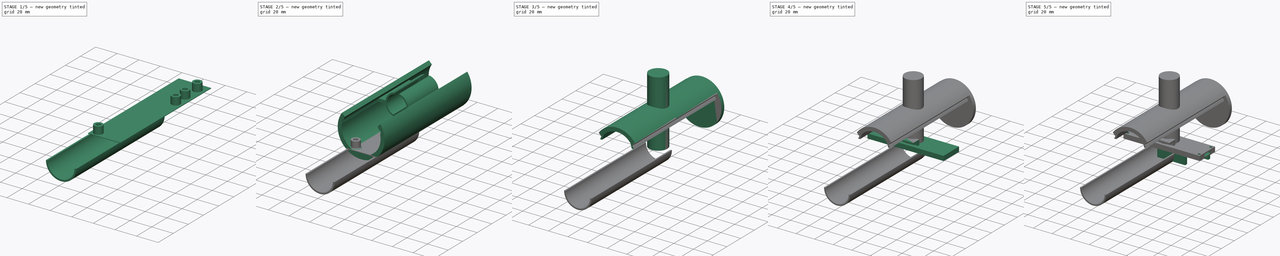
[diagram: build sequence overview — one tinted view per stage of 5, left to right]
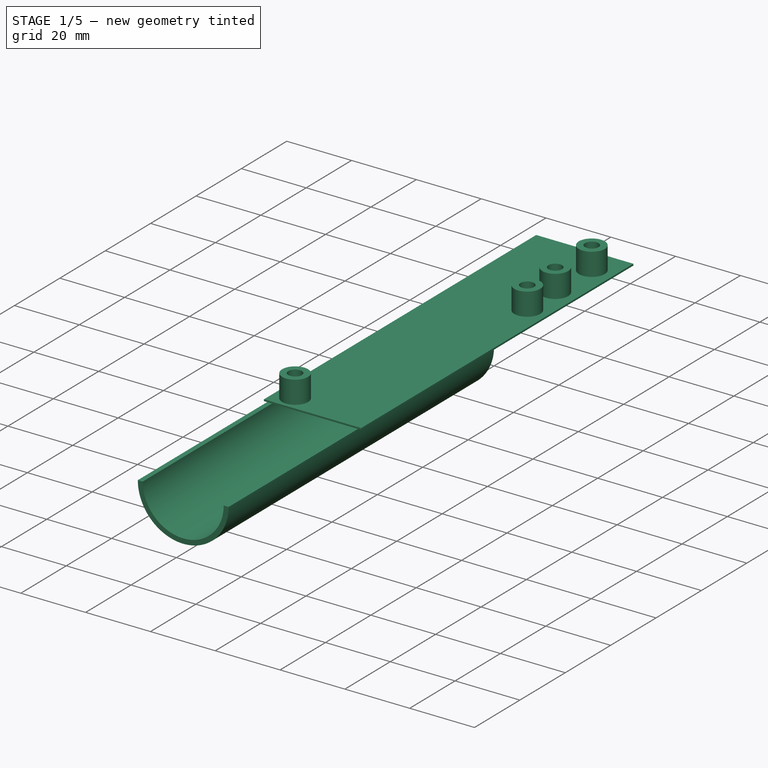
[diagram: stage 1 of 5 — iso view after this stage's code; geometry added in this stage tinted green]
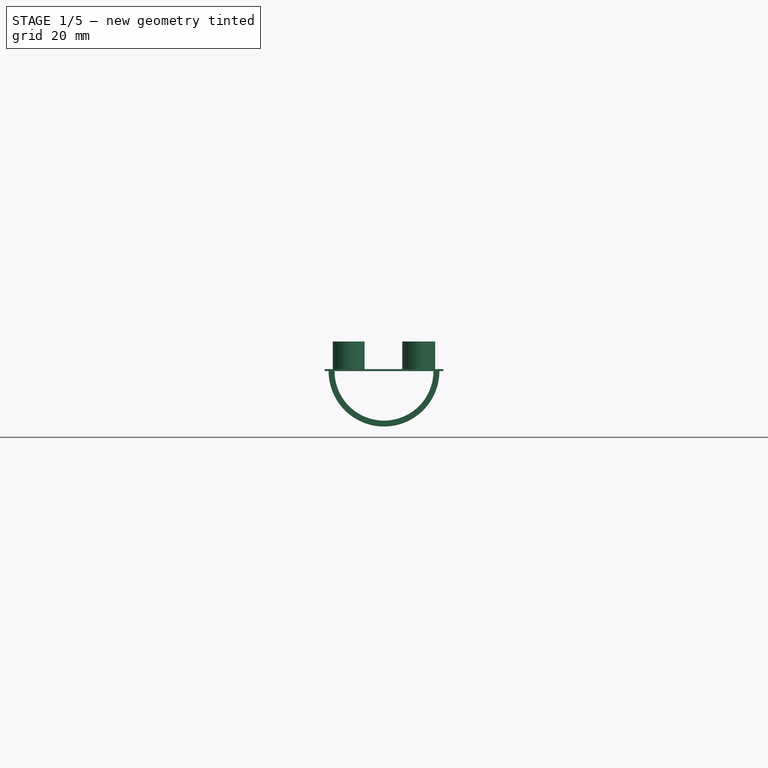
[diagram: stage 1 of 5 — front view after this stage's code; geometry added in this stage tinted green]
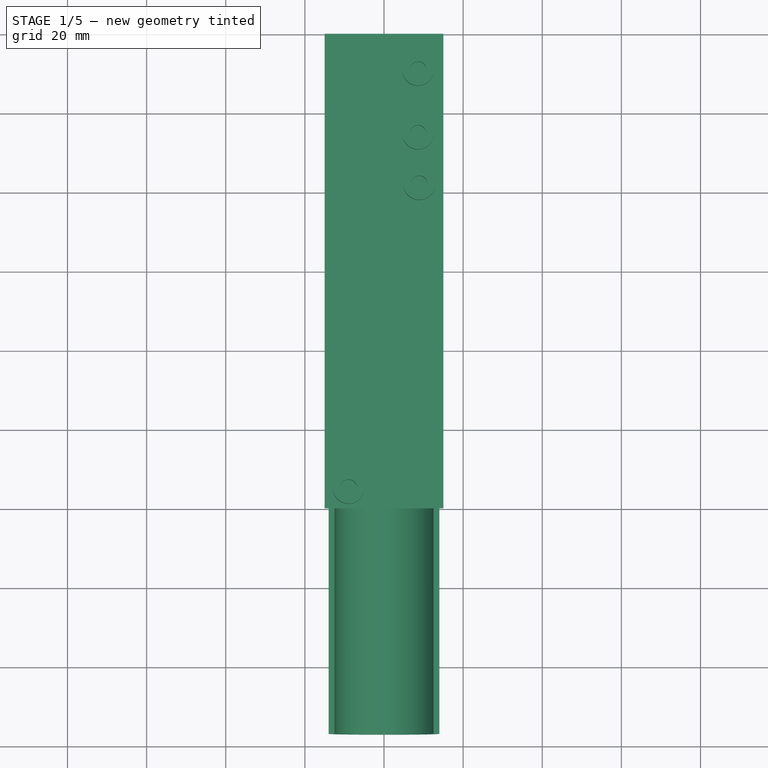
[diagram: stage 1 of 5 — top view after this stage's code; geometry added in this stage tinted green]
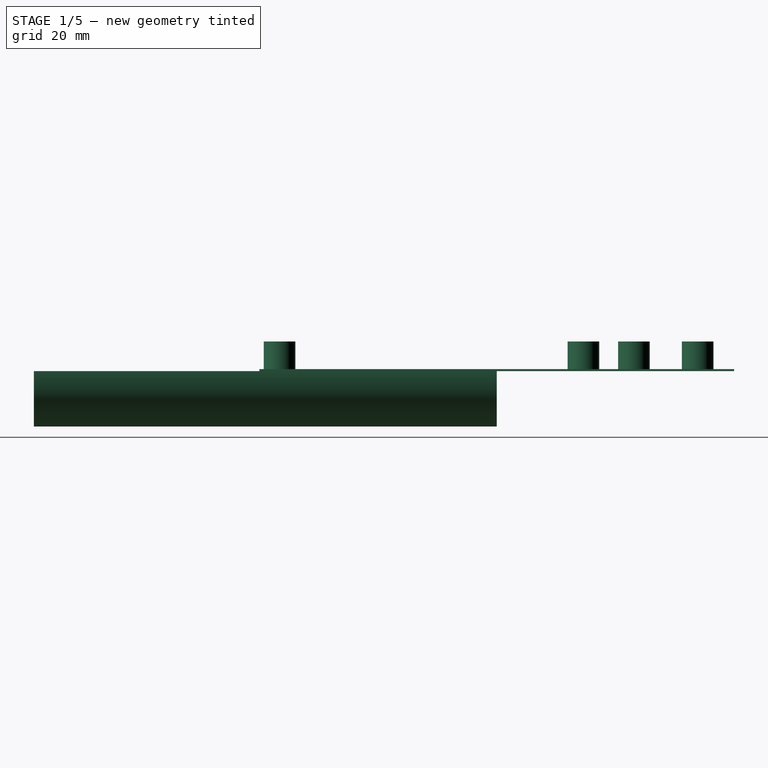
[diagram: stage 1 of 5 — right view after this stage's code; geometry added in this stage tinted green]
FCSTD DOCUMENT  (FreeCAD 0.20R29177 (Git))
Label: IOT_cellular_case
License: All rights reserved
LicenseURL: http://en.wikipedia.org/wiki/All_rights_reserved
objects: Sketcher::SketchObject×17, PartDesign::Pad×15, PartDesign::Body×6, PartDesign::Pocket×4, PartDesign::Chamfer×1, PartDesign::Plane×1
note: 64 computed .brp shape members not serialized (recipe doc carries the construction recipe); baked Part::Feature solids carry a one-line shape summary decoded from their .brp

FEATURE [PartDesign::Body] Body001  label="MPU"
  Group = -> [Sketch005,Pad003,Sketch006,Pocket002,Sketch007,Pad004]
  Origin = -> Origin001
  Placement = pos=(0.3,-9.55,-3.3) rot=(0,0,1;0rad)
  Tip = -> Pad004
FEATURE [Sketcher::SketchObject] Sketch008
  FullyConstrained = true
  MapMode = 5
  Support = -> [XY_Plane002]
  sketch-geometry (5):
    g0: LineSegment StartX=-15 StartY=60 StartZ=0 EndX=-15 EndY=-60 EndZ=0
    g1: LineSegment StartX=-15 StartY=-60 StartZ=0 EndX=15 EndY=-60 EndZ=0
    g2: LineSegment StartX=15 StartY=-60 StartZ=0 EndX=15 EndY=60 EndZ=0
    g3: LineSegment StartX=15 StartY=60 StartZ=0 EndX=-15 EndY=60 EndZ=0
    g4: GeomPoint X=0 Y=1e-16 Z=0
  constraints (12):
    c: Coincident(g0,g1)
    c: Coincident(g1,g2)
    c: Coincident(g2,g3)
    c: Coincident(g3,g0)
    c: Horizontal(g1)
    c: Horizontal(g3)
    c: Vertical(g0)
    c: Vertical(g2)
    c: Symmetric(g1,g0,g4)
    c: Coincident(g4,g-1)
    c: Distance(g2) = 120
    c: Distance(g1) = 30
FEATURE [PartDesign::Pad] Pad005
  Direction = (0,0,1)
  Length = 0.5
  Length2 = 10
  Profile = -> Sketch008
  ReferenceAxis = -> Sketch008 [N_Axis]
  Type = 0
FEATURE [Sketcher::SketchObject] Sketch009
  FullyConstrained = false
  MapMode = 5
  Placement = pos=(0,0,0.5) rot=(0,0,1;0rad)
  Support = -> [Pad005]
  sketch-geometry (4):
    g0: Circle CenterX=-8.94397 CenterY=-54.9007 CenterZ=0 NormalX=0 NormalY=0 NormalZ=1 AngleXU=0 Radius=2.1
    g1: Circle CenterX=8.91464 CenterY=21.9103 CenterZ=0 NormalX=0 NormalY=0 NormalZ=1 AngleXU=0 Radius=2.1
    g2: Circle CenterX=-8.94397 CenterY=-54.9007 CenterZ=0 NormalX=0 NormalY=0 NormalZ=1 AngleXU=0 Radius=4
    g3: Circle CenterX=8.91464 CenterY=21.9103 CenterZ=0 NormalX=0 NormalY=0 NormalZ=1 AngleXU=0 Radius=4
  constraints (6):
    c: Diameter(g1) = 4.2
    c: Diameter(g0) = 4.2
    c: Coincident(g2,g0)
    c: Coincident(g3,g1)
    c: Diameter(g3) = 8
    c: Diameter(g2) = 8
FEATURE [PartDesign::Pad] Pad006
  BaseFeature = -> Pad005
  Direction = (0,0,1)
  Length = 7
  Length2 = 10
  Profile = -> Sketch009
  ReferenceAxis = -> Sketch009 [N_Axis]
  Type = 0
FEATURE [Sketcher::SketchObject] Sketch010
  FullyConstrained = false
  MapMode = 5
  Placement = pos=(0,0,0.5) rot=(0,0,1;0rad)
  Support = -> [Pad006]
  sketch-geometry (4):
    g0: Circle CenterX=8.60808 CenterY=50.7918 CenterZ=0 NormalX=0 NormalY=0 NormalZ=1 AngleXU=0 Radius=2.1
    g1: Circle CenterX=8.60808 CenterY=34.6824 CenterZ=0 NormalX=0 NormalY=0 NormalZ=1 AngleXU=0 Radius=2.1
    g2: Circle CenterX=8.60808 CenterY=50.7918 CenterZ=0 NormalX=0 NormalY=0 NormalZ=1 AngleXU=0 Radius=4
    g3: Circle CenterX=8.60808 CenterY=34.6824 CenterZ=0 NormalX=0 NormalY=0 NormalZ=1 AngleXU=0 Radius=4
  constraints (6):
    c: Coincident(g2,g0)
    c: Coincident(g3,g1)
    c: Diameter(g1) = 4.2
    c: Diameter(g0) = 4.2
    c: Diameter(g3) = 8
    c: Diameter(g2) = 8
FEATURE [PartDesign::Pad] Pad007
  BaseFeature = -> Pad006
  Direction = (0,0,1)
  Length = 7
  Length2 = 10
  Profile = -> Sketch010
  ReferenceAxis = -> Sketch010 [N_Axis]
  Type = 0
FEATURE [PartDesign::Body] Body003  label="Top"
  Group = -> [Sketch015,Pad012,Pad013,Sketch016,Pad014]
  Origin = -> Origin003
  Tip = -> Pad014
FEATURE [Sketcher::SketchObject] Sketch017
  FullyConstrained = true
  MapMode = 5
  Placement = pos=(0,0,0) rot=(1,0,0;1.5708rad)
  Support = -> [XZ_Plane006]
  sketch-geometry (4):
    g0: ArcOfCircle CenterX=0 CenterY=0 CenterZ=0 NormalX=0 NormalY=0 NormalZ=1 AngleXU=0 Radius=12.5 StartAngle=3.14159 EndAngle=6.28319
    g1: ArcOfCircle CenterX=0 CenterY=1.3e-15 CenterZ=0 NormalX=0 NormalY=0 NormalZ=1 AngleXU=0 Radius=14 StartAngle=3.14159 EndAngle=6.28319
    g2: LineSegment StartX=-12.5 StartY=3e-15 StartZ=0 EndX=-14 EndY=3e-15 EndZ=0
    g3: LineSegment StartX=14 StartY=-3.1e-15 StartZ=0 EndX=12.5 EndY=-3.1e-15 EndZ=0
  constraints (13):
    c: Angle(g0) = 3.14159
    c: Angle(g1) = 3.14159
    c: Coincident(g2,g0)
    c: Coincident(g2,g1)
    c: Horizontal(g2)
    c: Coincident(g3,g1)
    c: Coincident(g3,g0)
    c: Horizontal(g3)
    c: Diameter(g0) = 25
    c: Diameter(g1) = 28
    c: DistanceX(g0,g1) = 0
    c: Coincident(g0,g-1)
    c: DistanceY(g0,g0) = 0
FEATURE [PartDesign::Pad] Pad015
  Direction = (0,-1,2e-16)
  Length = 117
  Length2 = 10
  Placement = pos=(0,0,0) rot=(1,0,0;1.5708rad)
  Profile = -> Sketch017
  ReferenceAxis = -> Sketch017 [N_Axis]
  Type = 0
FEATURE [PartDesign::Body] Body006
  Group = -> [Sketch017,Pad015]
  Origin = -> Origin006
  Tip = -> Pad015
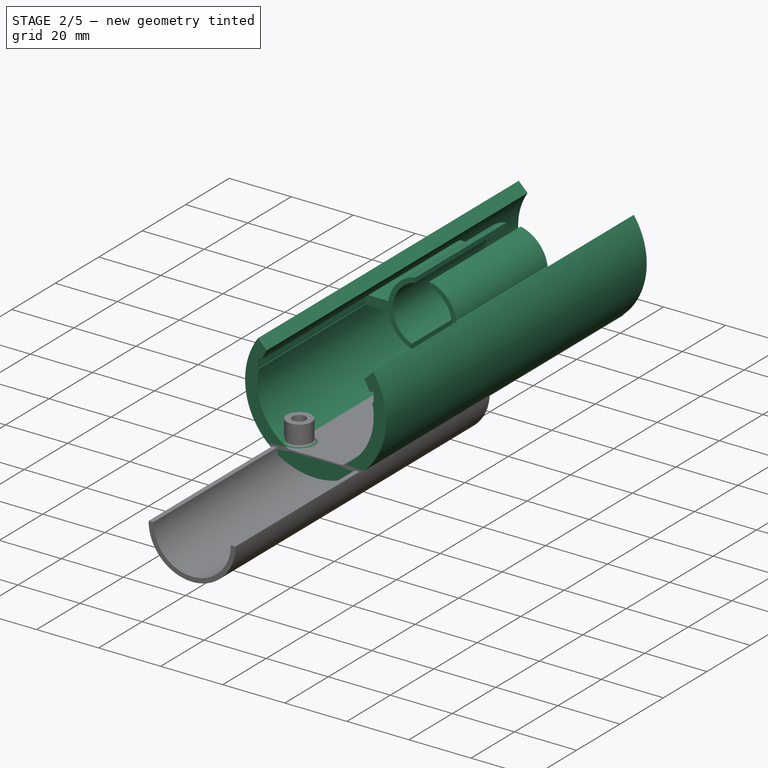
[diagram: stage 2 of 5 — iso view after this stage's code; geometry added in this stage tinted green]
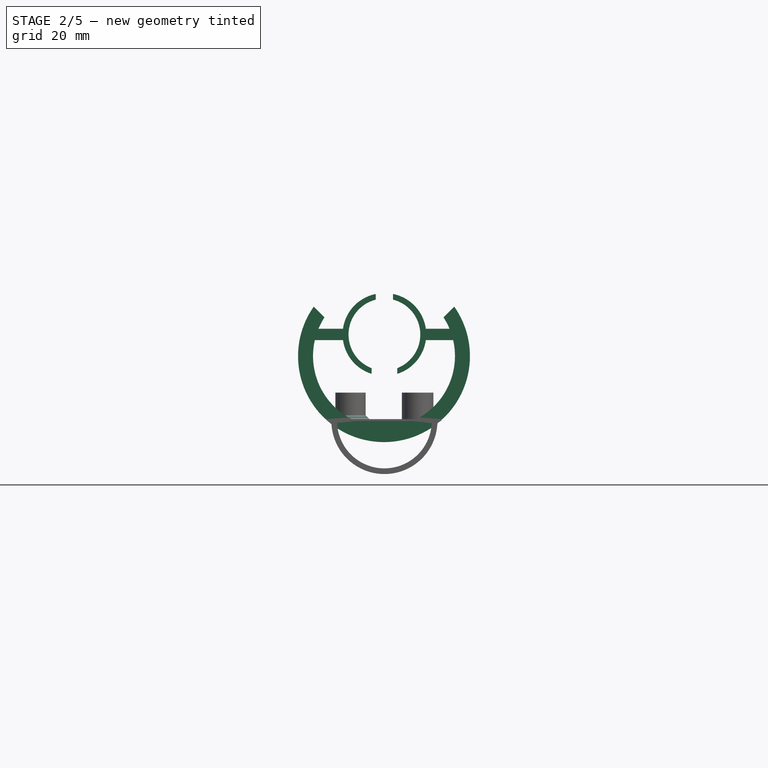
[diagram: stage 2 of 5 — front view after this stage's code; geometry added in this stage tinted green]
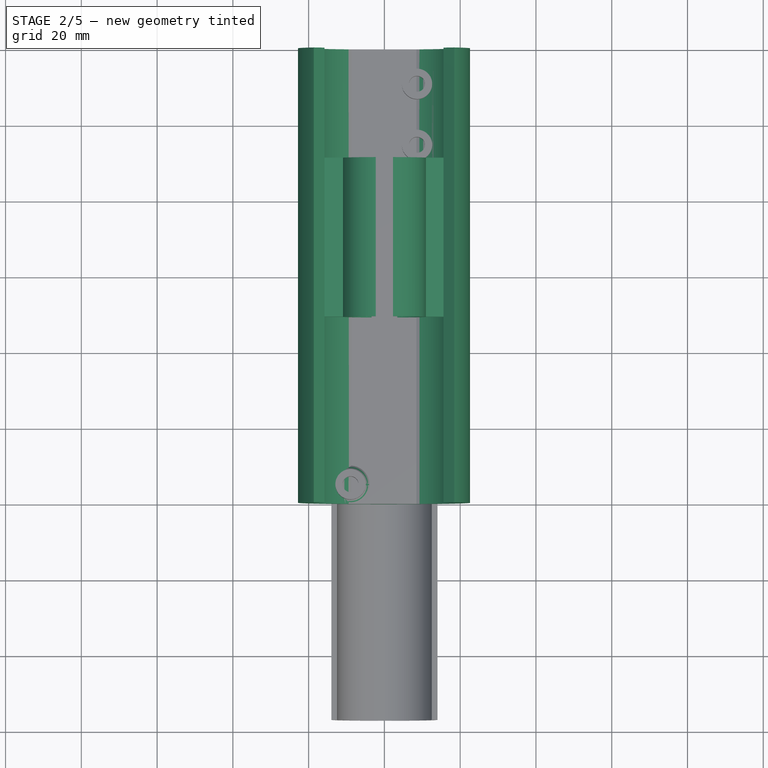
[diagram: stage 2 of 5 — top view after this stage's code; geometry added in this stage tinted green]
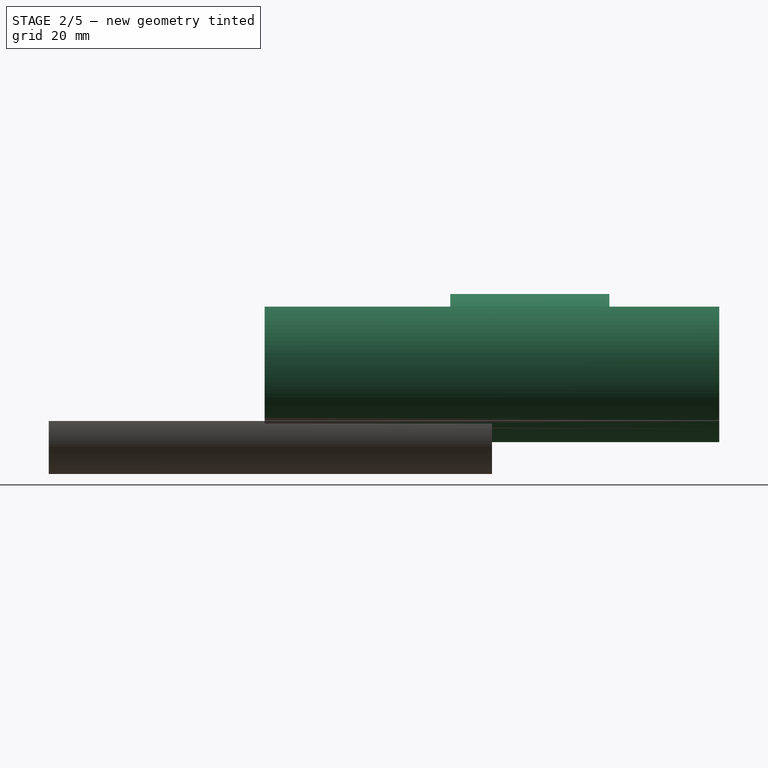
[diagram: stage 2 of 5 — right view after this stage's code; geometry added in this stage tinted green]
FEATURE [PartDesign::Body] Body004  label="Battery"
  Group = -> [Sketch013,Pad009]
  Origin = -> Origin004
  Placement = pos=(0,-133.8,15.2) rot=(-1,0,0;1.5708rad)
  Tip = -> Pad009
FEATURE [Sketcher::SketchObject] Sketch011
  ExternalGeometry = -> [Pad007]
  FullyConstrained = false
  MapMode = 5
  Placement = pos=(0,60,0) rot=(0,0.707107,0.707107;3.14159rad)
  Support = -> [Pad007]
  sketch-geometry (6):
    g0: ArcOfCircle CenterX=0.109272 CenterY=17.1188 CenterZ=0 NormalX=0 NormalY=0 NormalZ=1 AngleXU=0 Radius=22.6889 StartAngle=2.52671 EndAngle=6.89807
    g1: LineSegment StartX=-18.424 StartY=30.2072 StartZ=0 EndX=-15.5955 EndY=27.3788 EndZ=0
    g2: LineSegment StartX=18.6425 StartY=30.2072 StartZ=0 EndX=15.8141 EndY=27.3788 EndZ=0
    g3: ArcOfCircle CenterX=0.109272 CenterY=17.1643 CenterZ=0 NormalX=0 NormalY=0 NormalZ=1 AngleXU=0 Radius=18.7344 StartAngle=2.56493 EndAngle=4.30006
    g4: ArcOfCircle CenterX=0.109272 CenterY=17.1643 CenterZ=0 NormalX=0 NormalY=0 NormalZ=1 AngleXU=0 Radius=18.7344 StartAngle=5.12472 EndAngle=6.85985
    g5: LineSegment StartX=-7.39841 StartY=1.42e-14 StartZ=0 EndX=7.61695 EndY=1.07e-14 EndZ=0
  constraints (15):
    c: PointOnObject(g-3,g0)
    c: Coincident(g1,g0)
    c: Coincident(g2,g0)
    c: Coincident(g3,g1)
    c: Coincident(g4,g2)
    c: Distance(g1) = 4
    c: Distance(g2) = 4
    c: Angle(g-1,g2) = 0.785398
    c: Angle(g1,g-1) = 0.785398
    c: Equal(g3,g4)
    c: PointOnObject(g3,g-3)
    c: PointOnObject(g4,g-3)
    c: Coincident(g3,g4)
    c: Coincident(g5,g3)
    c: Coincident(g5,g4)
FEATURE [PartDesign::Pad] Pad010
  BaseFeature = -> Pad007
  Direction = (0,1,-2e-16)
  Length = 10
  Length2 = 10
  Profile = -> Sketch011
  ReferenceAxis = -> Sketch011 [N_Axis]
  Reversed = true
  Type = 3
  UpToFace = -> Pad007 [Face3]
FEATURE [Sketcher::SketchObject] Sketch014
  ExternalGeometry = -> [Pad010]
  FullyConstrained = false
  MapMode = 5
  Placement = pos=(0,-60,0) rot=(1,0,0;1.5708rad)
  Support = -> [Pad010]
  sketch-geometry (16):
    g0: ArcOfCircle CenterX=0.0282242 CenterY=22.8191 CenterZ=0 NormalX=0 NormalY=0 NormalZ=1 AngleXU=0 Radius=9.5 StartAngle=1.81537 EndAngle=4.3461
    g1: LineSegment StartX=-3.37422 StartY=13.9493 StartZ=0 EndX=-3.37422 EndY=12.4493 EndZ=0
    g2: LineSegment StartX=-2.27216 StartY=32.0364 StartZ=0 EndX=-2.27216 EndY=33.5364 EndZ=0
    g3: ArcOfCircle CenterX=-0.140352 CenterY=22.8526 CenterZ=0 NormalX=0 NormalY=0 NormalZ=1 AngleXU=0 Radius=10.8944 StartAngle=1.76775 EndAngle=3.00347
    g4: LineSegment StartX=-18.5956 StartY=24.3526 StartZ=0 EndX=-10.931 EndY=24.3526 EndZ=0
    g5: LineSegment StartX=-10.931 StartY=21.3526 StartZ=0 EndX=-18.5956 EndY=21.3526 EndZ=0
    g6: LineSegment StartX=-18.5956 StartY=21.3526 StartZ=0 EndX=-18.5956 EndY=24.3526 EndZ=0
    g7: ArcOfCircle CenterX=-0.140352 CenterY=22.8526 CenterZ=0 NormalX=0 NormalY=0 NormalZ=1 AngleXU=0 Radius=10.8944 StartAngle=3.27972 EndAngle=4.41101
    g8: ArcOfCircle CenterX=-0.0282242 CenterY=22.8191 CenterZ=0 NormalX=0 NormalY=0 NormalZ=1 AngleXU=0 Radius=9.5 StartAngle=5.07868 EndAngle=7.6094
    g9: LineSegment StartX=2.27216 StartY=32.0364 StartZ=0 EndX=2.27216 EndY=33.5364 EndZ=0
    g10: ArcOfCircle CenterX=0.140352 CenterY=22.8526 CenterZ=0 NormalX=0 NormalY=0 NormalZ=1 AngleXU=0 Radius=10.8944 StartAngle=0.138125 EndAngle=1.37385
    g11: LineSegment StartX=18.5956 StartY=24.3526 StartZ=0 EndX=10.931 EndY=24.3526 EndZ=0
    g12: LineSegment StartX=18.5956 StartY=21.3526 StartZ=0 EndX=18.5956 EndY=24.3526 EndZ=0
    g13: LineSegment StartX=10.931 StartY=21.3526 StartZ=0 EndX=18.5956 EndY=21.3526 EndZ=0
    g14: ArcOfCircle CenterX=0.140352 CenterY=22.8526 CenterZ=0 NormalX=0 NormalY=0 NormalZ=1 AngleXU=0 Radius=10.8944 StartAngle=5.01377 EndAngle=6.14506
    g15: LineSegment StartX=3.37422 StartY=13.9493 StartZ=0 EndX=3.37422 EndY=12.4493 EndZ=0
  constraints (38):
    c: Diameter(g0) = 19
    c: Angle(g0) = 2.53073
    c: Coincident(g1,g0)
    c: Coincident(g2,g0)
    c: Coincident(g3,g2)
    c: Coincident(g7,g1)
    c: Vertical(g2)
    c: Vertical(g1)
    c: Distance(g1) = 1.5
    c: Distance(g2) = 1.5
    c: Coincident(g5,g6)
    c: Coincident(g6,g4)
    c: Horizontal(g4)
    c: Horizontal(g5)
    c: Vertical(g6)
    c: PointOnObject(g4,g3)
    c: Equal(g3,g7)
    c: Coincident(g3,g7)
    c: Distance(g6) = 3
    c: Diameter(g8) = 19
    c: Angle(g8) = 2.53073
    c: Coincident(g15,g8)
    c: Coincident(g9,g8)
    c: Coincident(g10,g9)
    c: Coincident(g14,g15)
    c: Vertical(g9)
    c: Vertical(g15)
    c: Distance(g15) = 1.5
    c: Distance(g9) = 1.5
    c: Coincident(g13,g12)
    c: Coincident(g12,g11)
    c: Horizontal(g11)
    c: Horizontal(g13)
    c: Vertical(g12)
    c: PointOnObject(g11,g10)
    c: Equal(g10,g14)
    c: Coincident(g10,g14)
    c: Distance(g12) = 3
FEATURE [PartDesign::Pad] Pad011
  BaseFeature = -> Pad010
  Direction = (0,-1,2e-16)
  Length = 91
  Length2 = 10
  Profile = -> Sketch014
  ReferenceAxis = -> Sketch014 [N_Axis]
  Reversed = true
  Type = 0
FEATURE [PartDesign::Pocket] Pocket003
  BaseFeature = -> Pad011
  Direction = (0,1,-2e-16)
  Length = 49
  Length2 = 5
  Profile = -> Sketch014
  ReferenceAxis = -> Sketch014 [N_Axis]
  Type = 0
  expr: Length = 49mm
FEATURE [PartDesign::Chamfer] Chamfer
  Angle = 45
  Base = -> Pocket003 [Edge42]
  BaseFeature = -> Pocket003
  ChamferType = 0
  FlipDirection = false
  Size = 1
  Size2 = 1
  SupportTransform = false
  UseAllEdges = false
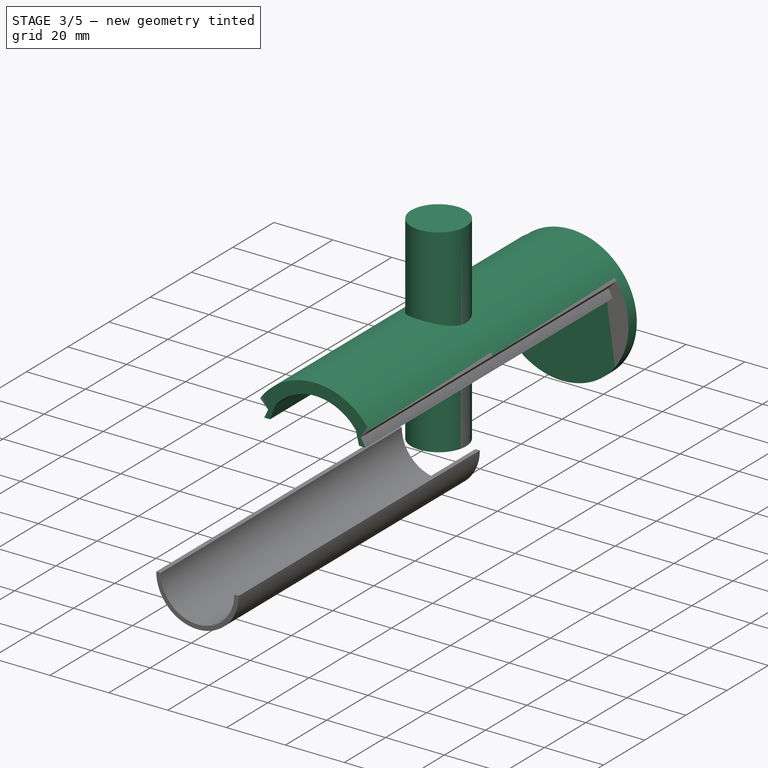
[diagram: stage 3 of 5 — iso view after this stage's code; geometry added in this stage tinted green]
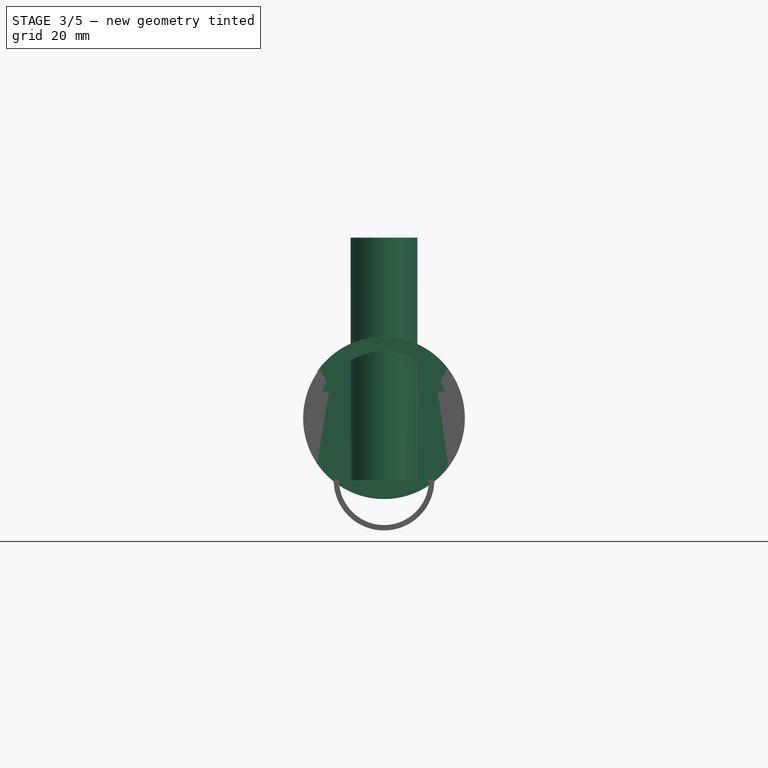
[diagram: stage 3 of 5 — front view after this stage's code; geometry added in this stage tinted green]
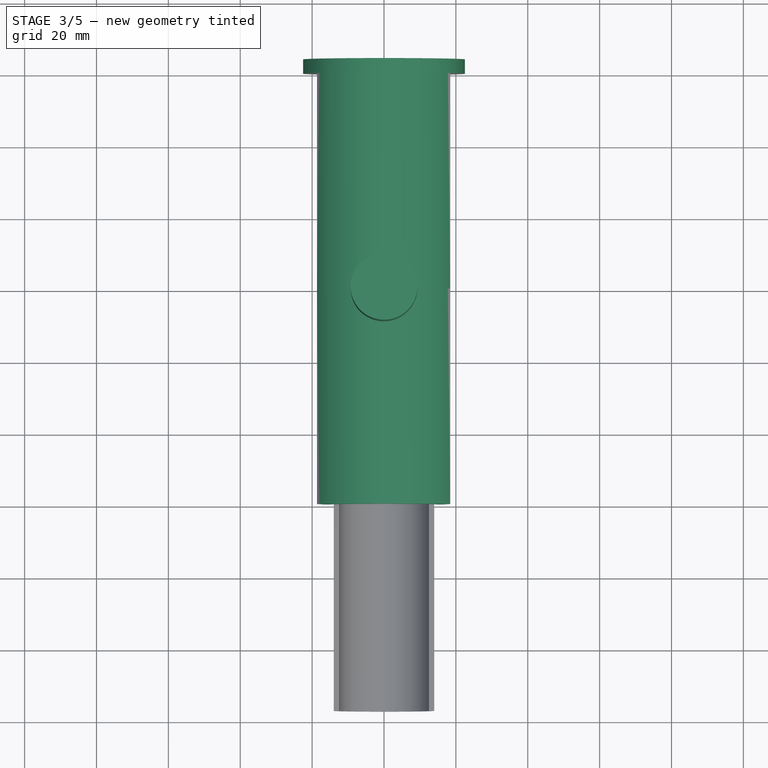
[diagram: stage 3 of 5 — top view after this stage's code; geometry added in this stage tinted green]
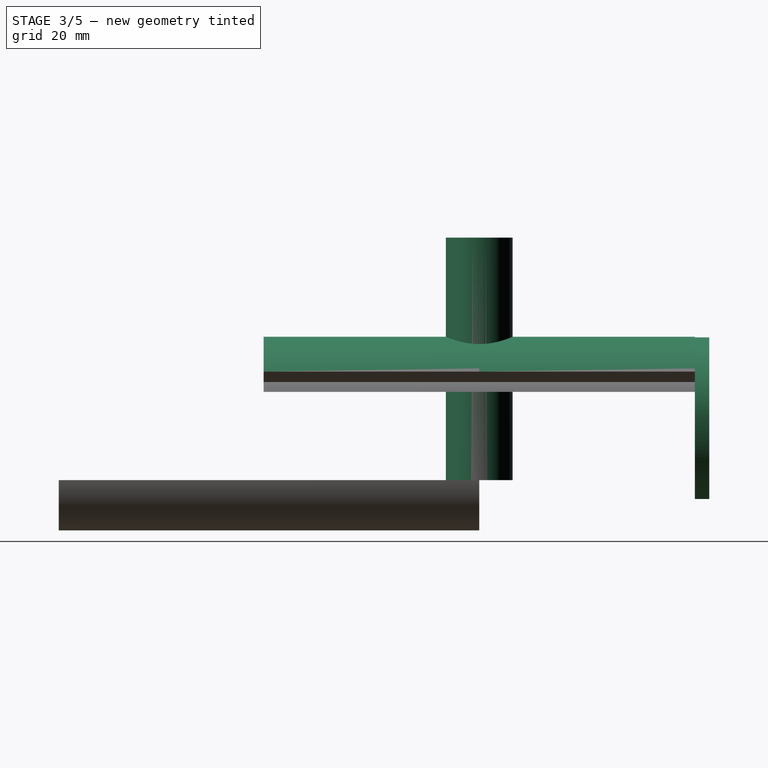
[diagram: stage 3 of 5 — right view after this stage's code; geometry added in this stage tinted green]
FEATURE [Sketcher::SketchObject] Sketch013
  FullyConstrained = true
  MapMode = 5
  Support = -> [XY_Plane004]
  sketch-geometry (1):
    g0: Circle CenterX=0 CenterY=0 CenterZ=0 NormalX=0 NormalY=0 NormalZ=1 AngleXU=0 Radius=9.3
  constraints (2):
    c: Coincident(g0,g-1)
    c: Diameter(g0) = 18.6
FEATURE [PartDesign::Pad] Pad009
  Direction = (0,0,1)
  Length = 67.5
  Length2 = 10
  Profile = -> Sketch013
  ReferenceAxis = -> Sketch013 [N_Axis]
  Type = 0
FEATURE [PartDesign::Plane] DatumPlane
  AttachmentOffset = pos=(5,0,0) rot=(0,-1,0;1.5708rad)
  Length = 75.2987
  MapMode = 5
  Placement = pos=(5,0,0.5) rot=(0,-1,0;1.5708rad)
  ResizeMode = 0
  Support = -> [Chamfer]
  Width = 136.762
FEATURE [PartDesign::Body] Body002  label="Base"
  Group = -> [Sketch008,Pad005,Sketch009,Pad006,Sketch010,Pad007,Sketch011,Pad010,Sketch014,Pad011,Pocket003,Chamfer,DatumPlane]
  Origin = -> Origin002
  Tip = -> Chamfer
FEATURE [Sketcher::SketchObject] Sketch015
  FullyConstrained = false
  MapMode = 5
  Placement = pos=(0,0,0) rot=(1,0,0;1.5708rad)
  Support = -> [XZ_Plane003]
  sketch-geometry (10):
    g0: ArcOfCircle CenterX=-0.110729 CenterY=17.3899 CenterZ=0 NormalX=0 NormalY=0 NormalZ=1 AngleXU=0 Radius=22.5316 StartAngle=0.60477 EndAngle=2.53683
    g1: LineSegment StartX=-18.6461 StartY=30.2005 StartZ=0 EndX=-15.8763 EndY=27.4048 EndZ=0
    g2: LineSegment StartX=18.4245 StartY=30.2007 StartZ=0 EndX=15.5862 EndY=27.3089 EndZ=0
    g3: ArcOfCircle CenterX=33.048 CenterY=1.33676 CenterZ=0 NormalX=0 NormalY=0 NormalZ=1 AngleXU=0 Radius=55.4359 StartAngle=2.65203 EndAngle=2.70788
    g4: ArcOfCircle CenterX=2.16538 CenterY=18.2096 CenterZ=0 NormalX=0 NormalY=0 NormalZ=1 AngleXU=0 Radius=16.2147 StartAngle=0.402535 EndAngle=0.59581
    g5: LineSegment StartX=-17.2551 StartY=24.6334 StartZ=0 EndX=-15.245 EndY=24.6334 EndZ=0
    g6: LineSegment StartX=-15.245 StartY=24.6334 StartZ=0 EndX=-13.4291 EndY=29.4816 EndZ=0
    g7: LineSegment StartX=17.084 StartY=24.5617 StartZ=0 EndX=14.9822 EndY=24.5617 EndZ=0
    g8: LineSegment StartX=14.9822 StartY=24.5617 StartZ=0 EndX=13.8691 EndY=29.0716 EndZ=0
    g9: ArcOfCircle CenterX=0.059538 CenterY=18.5915 CenterZ=0 NormalX=0 NormalY=0 NormalZ=1 AngleXU=0 Radius=17.336 StartAngle=0.649171 EndAngle=2.46238
  constraints (12):
    c: Coincident(g1,g0)
    c: Coincident(g2,g0)
    c: Coincident(g3,g1)
    c: Coincident(g4,g2)
    c: Coincident(g5,g3)
    c: Horizontal(g5)
    c: Coincident(g6,g5)
    c: Coincident(g7,g4)
    c: Horizontal(g7)
    c: Coincident(g8,g7)
    c: Coincident(g9,g6)
    c: Coincident(g9,g8)
FEATURE [PartDesign::Pad] Pad012
  Direction = (0,-1,2e-16)
  Length = 33
  Length2 = 10
  Placement = pos=(0,0,0) rot=(1,0,0;1.5708rad)
  Profile = -> Sketch015
  ReferenceAxis = -> Sketch015 [N_Axis]
  Type = 3
  UpToFace = -> Chamfer [Face34]
FEATURE [PartDesign::Pad] Pad013
  BaseFeature = -> Pad012
  Direction = (0,-1,2e-16)
  Length = 10
  Length2 = 10
  Placement = pos=(0,0,0) rot=(1,0,0;1.5708rad)
  Profile = -> Sketch015
  ReferenceAxis = -> Sketch015 [N_Axis]
  Reversed = true
  Type = 3
  UpToFace = -> Chamfer [Face10]
FEATURE [Sketcher::SketchObject] Sketch016
  FullyConstrained = false
  MapMode = 5
  Placement = pos=(0,60,-4.21e-14) rot=(-1,0,0;1.5708rad)
  Support = -> [Pad013]
  sketch-geometry (1):
    g0: Circle CenterX=0 CenterY=-17.2374 CenterZ=0 NormalX=0 NormalY=0 NormalZ=1 AngleXU=0 Radius=22.5
  constraints (2):
    c: PointOnObject(g0,g-2)
    c: Diameter(g0) = 45
FEATURE [PartDesign::Pad] Pad014
  BaseFeature = -> Pad013
  Direction = (0,1,-2e-16)
  Length = 4
  Length2 = 10
  Placement = pos=(0,0,0) rot=(1,0,0;1.5708rad)
  Profile = -> Sketch016
  ReferenceAxis = -> Sketch016 [N_Axis]
  Type = 0
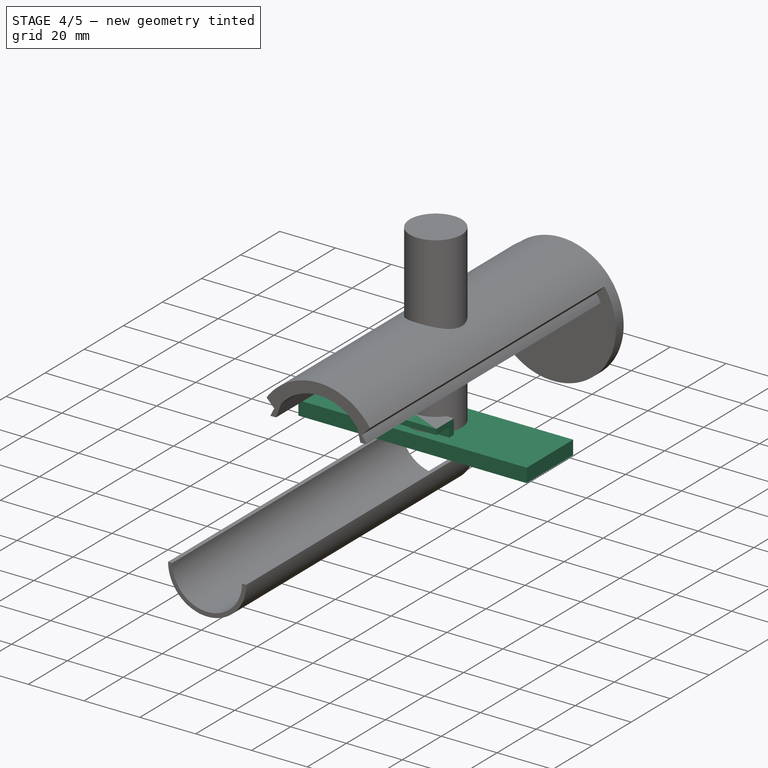
[diagram: stage 4 of 5 — iso view after this stage's code; geometry added in this stage tinted green]
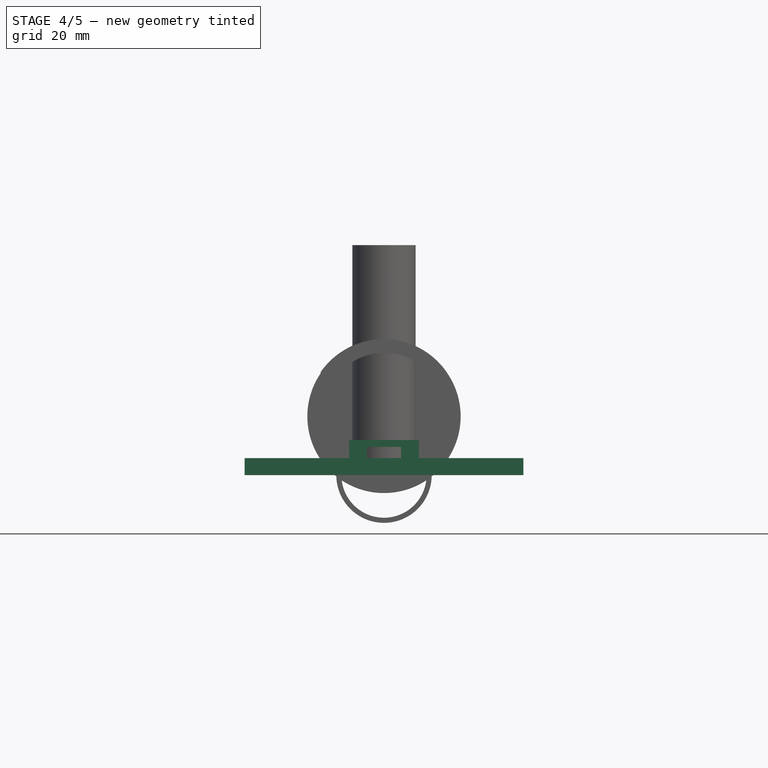
[diagram: stage 4 of 5 — front view after this stage's code; geometry added in this stage tinted green]
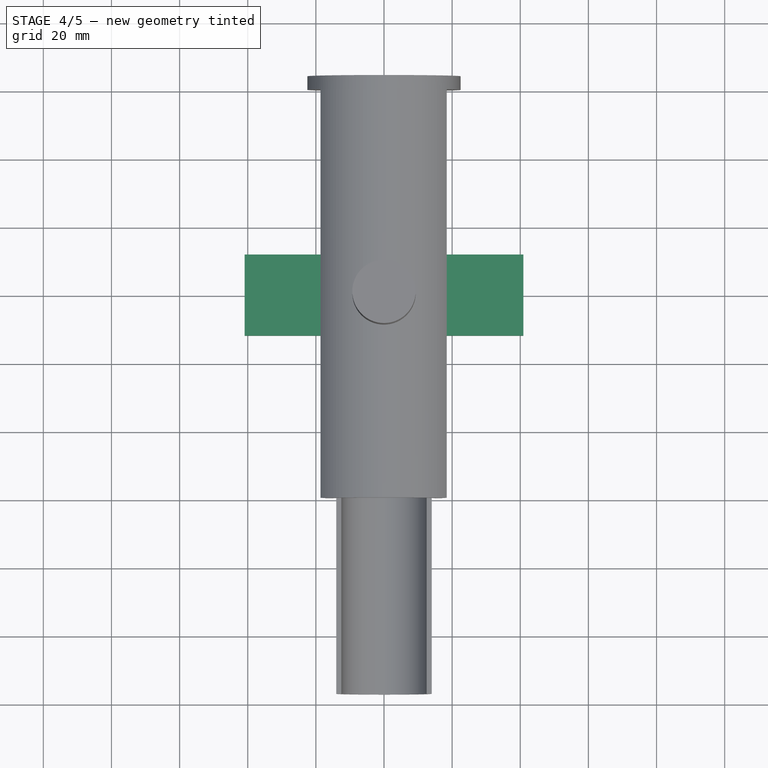
[diagram: stage 4 of 5 — top view after this stage's code; geometry added in this stage tinted green]
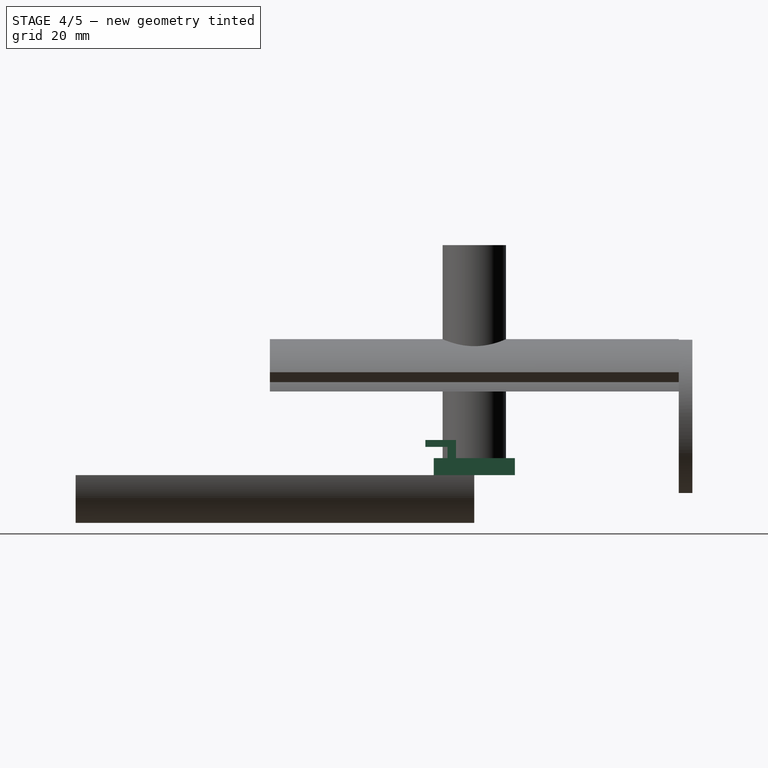
[diagram: stage 4 of 5 — right view after this stage's code; geometry added in this stage tinted green]
FEATURE [Sketcher::SketchObject] Sketch
  FullyConstrained = true
  MapMode = 5
  Support = -> [XY_Plane]
  sketch-geometry (5):
    g0: LineSegment StartX=-40.9 StartY=11.9 StartZ=0 EndX=-40.9 EndY=-11.9 EndZ=0
    g1: LineSegment StartX=-40.9 StartY=-11.9 StartZ=0 EndX=40.9 EndY=-11.9 EndZ=0
    g2: LineSegment StartX=40.9 StartY=-11.9 StartZ=0 EndX=40.9 EndY=11.9 EndZ=0
    g3: LineSegment StartX=40.9 StartY=11.9 StartZ=0 EndX=-40.9 EndY=11.9 EndZ=0
    g4: GeomPoint X=0 Y=0 Z=0
  constraints (12):
    c: Coincident(g0,g1)
    c: Coincident(g1,g2)
    c: Coincident(g2,g3)
    c: Coincident(g3,g0)
    c: Horizontal(g1)
    c: Horizontal(g3)
    c: Vertical(g0)
    c: Vertical(g2)
    c: Symmetric(g1,g0,g4)
    c: Coincident(g4,g-1)
    c: Distance(g3) = 81.8
    c: Distance(g2) = 23.8
FEATURE [PartDesign::Pad] Pad
  Direction = (0,0,1)
  Length = 5
  Length2 = 10
  Profile = -> Sketch
  ReferenceAxis = -> Sketch [N_Axis]
  Type = 0
FEATURE [PartDesign::Body] Body  label="Iot Cellular"
  Group = -> [Sketch,Pad,Sketch001,Pad001,Sketch002,Pad002,Sketch003,Pocket,Sketch004,Pocket001]
  Origin = -> Origin
  Placement = pos=(5.8e-15,-60.5,1.5) rot=(0.707107,-0.707107,0;3.14159rad)
  Tip = -> Pocket001
FEATURE [Sketcher::SketchObject] Sketch005
  FullyConstrained = true
  MapMode = 5
  Support = -> [XY_Plane001]
  sketch-geometry (5):
    g0: LineSegment StartX=-10.25 StartY=7.85 StartZ=0 EndX=-10.25 EndY=-7.85 EndZ=0
    g1: LineSegment StartX=-10.25 StartY=-7.85 StartZ=0 EndX=10.25 EndY=-7.85 EndZ=0
    g2: LineSegment StartX=10.25 StartY=-7.85 StartZ=0 EndX=10.25 EndY=7.85 EndZ=0
    g3: LineSegment StartX=10.25 StartY=7.85 StartZ=0 EndX=-10.25 EndY=7.85 EndZ=0
    g4: GeomPoint X=0 Y=0 Z=0
  constraints (12):
    c: Coincident(g0,g1)
    c: Coincident(g1,g2)
    c: Coincident(g2,g3)
    c: Coincident(g3,g0)
    c: Horizontal(g1)
    c: Horizontal(g3)
    c: Vertical(g0)
    c: Vertical(g2)
    c: Symmetric(g1,g0,g4)
    c: Coincident(g4,g-1)
    c: Distance(g1) = 20.5
    c: Distance(g2) = 15.7
FEATURE [PartDesign::Pad] Pad003
  Direction = (0,0,1)
  Length = 3.3
  Length2 = 10
  Profile = -> Sketch005
  ReferenceAxis = -> Sketch005 [N_Axis]
  Type = 0
FEATURE [Sketcher::SketchObject] Sketch006
  ExternalGeometry = -> [Pad003]
  FullyConstrained = true
  MapMode = 5
  Placement = pos=(0,0,3.3) rot=(0,0,1;0rad)
  Support = -> [Pad003]
  sketch-geometry (2):
    g0: Circle CenterX=-8.05 CenterY=5.35 CenterZ=0 NormalX=0 NormalY=0 NormalZ=1 AngleXU=0 Radius=1.5
    g1: Circle CenterX=8.05 CenterY=5.35 CenterZ=0 NormalX=0 NormalY=0 NormalZ=1 AngleXU=0 Radius=1.5
  constraints (6):
    c: Diameter(g1) = 3
    c: Diameter(g0) = 3
    c: DistanceX(g-4,g0) = 2.2
    c: DistanceX(g1,g-3) = 2.2
    c: DistanceY(g1,g-3) = 2.5
    c: DistanceY(g0,g-4) = 2.5
FEATURE [PartDesign::Pocket] Pocket002
  BaseFeature = -> Pad003
  Direction = (0,0,-1)
  Length = 5
  Length2 = 5
  Profile = -> Sketch006
  ReferenceAxis = -> Sketch006 [N_Axis]
  Type = 0
FEATURE [Sketcher::SketchObject] Sketch007
  ExternalGeometry = -> [Pocket002]
  FullyConstrained = false
  MapMode = 5
  Placement = pos=(10.25,0,0) rot=(0.57735,0.57735,0.57735;2.0944rad)
  Support = -> [Pocket002]
  sketch-geometry (7):
    g0: LineSegment StartX=-7.85 StartY=3.3 StartZ=0 EndX=-7.85 EndY=8.3 EndZ=0
    g1: LineSegment StartX=-7.85 StartY=8.3 StartZ=0 EndX=-14.35 EndY=8.3 EndZ=0
    g2: LineSegment StartX=-14.35 StartY=8.3 StartZ=0 EndX=-14.35 EndY=10.3 EndZ=0
    g3: LineSegment StartX=-14.35 StartY=10.3 StartZ=0 EndX=-5.35 EndY=10.3 EndZ=0
    g4: LineSegment StartX=-5.35 StartY=10.3 StartZ=0 EndX=-5.35 EndY=3.3 EndZ=0
    g5: LineSegment StartX=-7.85 StartY=3.3 StartZ=0 EndX=-6.83716 EndY=2.49178 EndZ=0
    g6: LineSegment StartX=-5.35 StartY=3.3 StartZ=0 EndX=-6.83716 EndY=2.49178 EndZ=0
  constraints (18):
    c: Coincident(g0,g-3)
    c: Vertical(g0)
    c: Coincident(g1,g0)
    c: Horizontal(g1)
    c: Coincident(g2,g1)
    c: Vertical(g2)
    c: Coincident(g3,g2)
    c: Horizontal(g3)
    c: Coincident(g4,g3)
    c: PointOnObject(g4,g-3)
    c: Vertical(g4)
    c: DistanceX(g0,g4) = 2.5
    c: Distance(g4) = 7
    c: Distance(g0) = 5
    c: Distance(g1) = 6.5
    c: Coincident(g5,g0)
    c: Coincident(g6,g4)
    c: Coincident(g6,g5)
FEATURE [PartDesign::Pad] Pad004
  BaseFeature = -> Pocket002
  Direction = (1,0,0)
  Length = 21
  Length2 = 10
  Profile = -> Sketch007
  ReferenceAxis = -> Sketch007 [N_Axis]
  Reversed = true
  Type = 3
  UpToFace = -> Pocket002 [Face1]
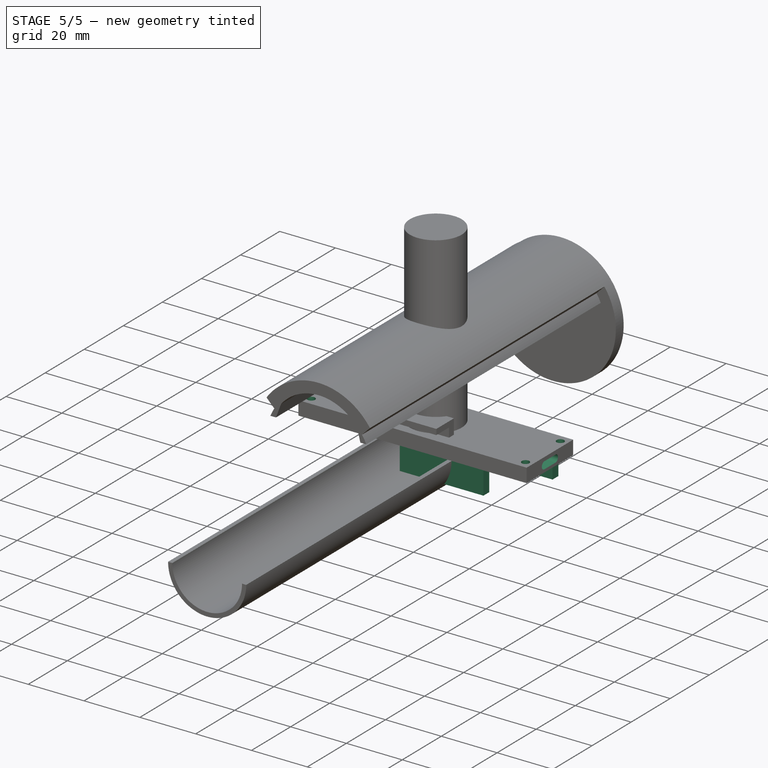
[diagram: stage 5 of 5 — iso view after this stage's code; geometry added in this stage tinted green]
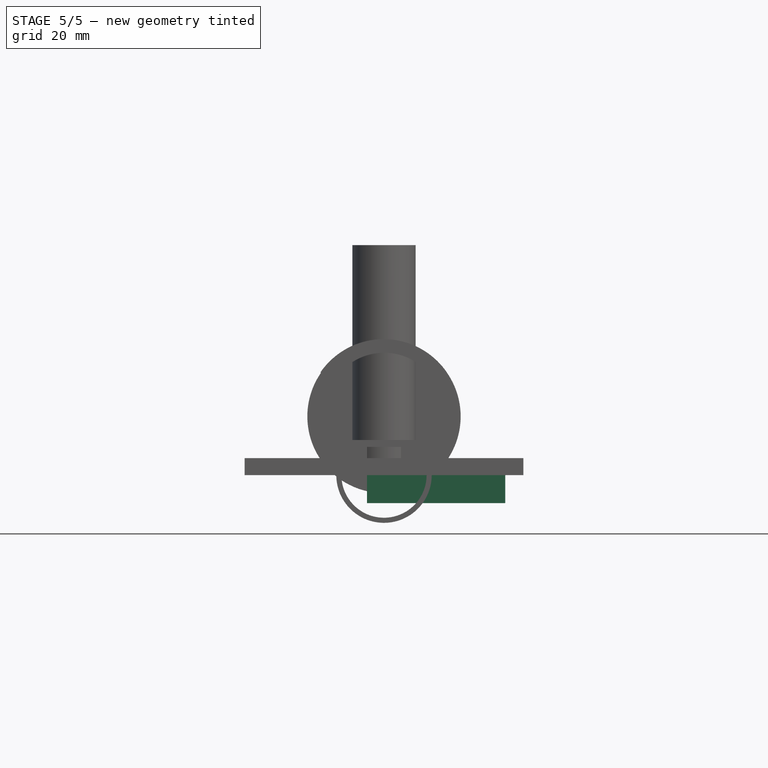
[diagram: stage 5 of 5 — front view after this stage's code; geometry added in this stage tinted green]
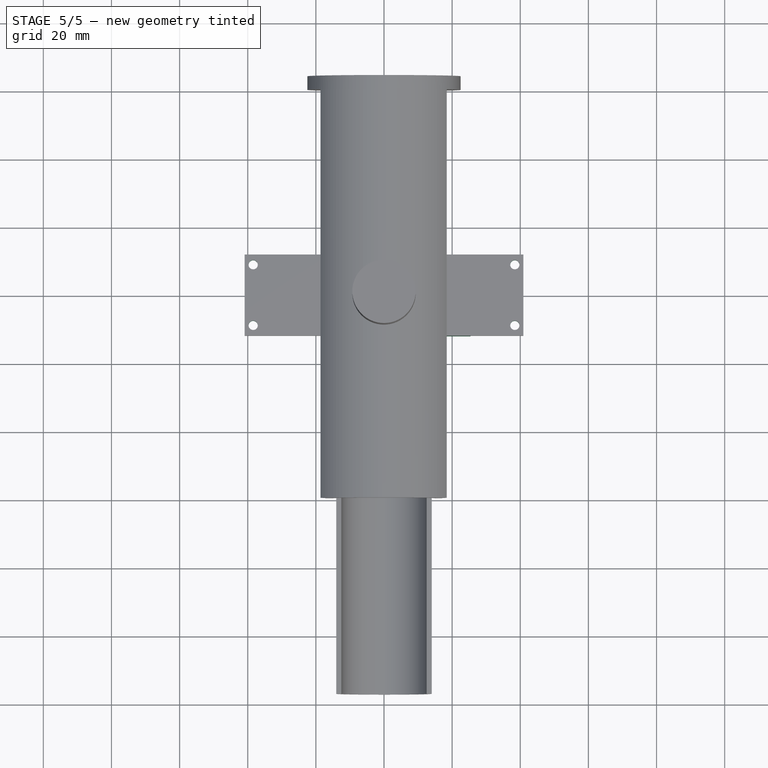
[diagram: stage 5 of 5 — top view after this stage's code; geometry added in this stage tinted green]
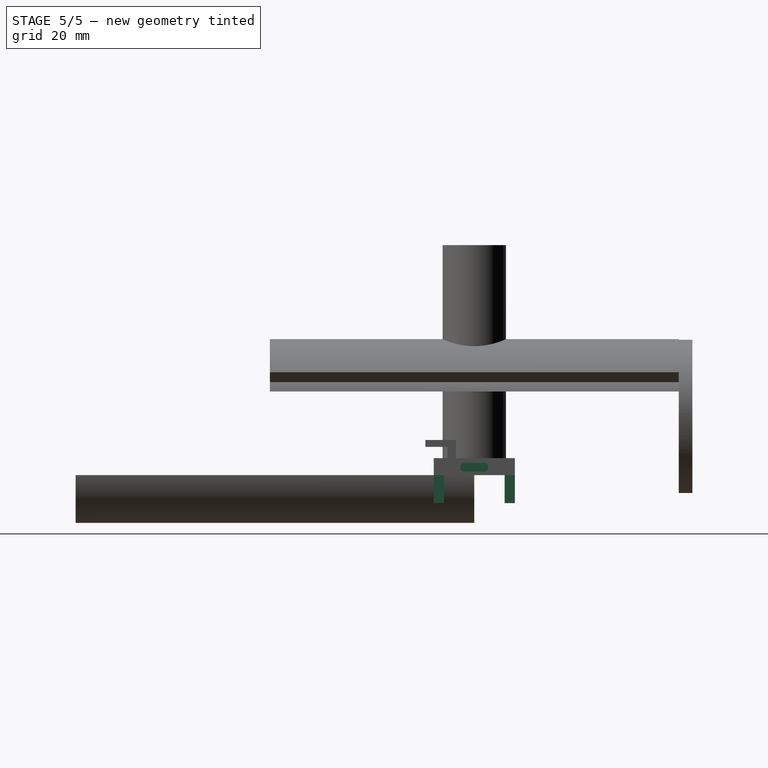
[diagram: stage 5 of 5 — right view after this stage's code; geometry added in this stage tinted green]
FEATURE [Sketcher::SketchObject] Sketch001
  ExternalGeometry = -> [Pad]
  FullyConstrained = true
  MapMode = 5
  Placement = pos=(0,0,0) rot=(1,0,0;3.14159rad)
  Support = -> [Pad]
  sketch-geometry (4):
    g0: LineSegment StartX=-4.6 StartY=11.9 StartZ=0 EndX=25.4 EndY=11.9 EndZ=0
    g1: LineSegment StartX=25.4 StartY=11.9 StartZ=0 EndX=25.4 EndY=8.9 EndZ=0
    g2: LineSegment StartX=25.4 StartY=8.9 StartZ=0 EndX=-4.6 EndY=8.9 EndZ=0
    g3: LineSegment StartX=-4.6 StartY=8.9 StartZ=0 EndX=-4.6 EndY=11.9 EndZ=0
  constraints (12):
    c: Coincident(g0,g1)
    c: Coincident(g1,g2)
    c: Coincident(g2,g3)
    c: Coincident(g3,g0)
    c: Horizontal(g0)
    c: Horizontal(g2)
    c: Vertical(g1)
    c: Vertical(g3)
    c: Distance(g2) = 30
    c: Distance(g1) = 3
    c: PointOnObject(g0,g-3)
    c: DistanceX(g0,g-3) = 15.5
FEATURE [PartDesign::Pad] Pad001
  BaseFeature = -> Pad
  Direction = (0,0,-1)
  Length = 8.2
  Length2 = 10
  Profile = -> Sketch001
  ReferenceAxis = -> Sketch001 [N_Axis]
  Type = 0
FEATURE [Sketcher::SketchObject] Sketch002
  ExternalGeometry = -> [Pad001]
  FullyConstrained = true
  MapMode = 5
  Placement = pos=(0,0,0) rot=(1,0,0;3.14159rad)
  Support = -> [Pad001]
  sketch-geometry (4):
    g0: LineSegment StartX=-5 StartY=-8.9 StartZ=0 EndX=35.6 EndY=-8.9 EndZ=0
    g1: LineSegment StartX=35.6 StartY=-8.9 StartZ=0 EndX=35.6 EndY=-11.9 EndZ=0
    g2: LineSegment StartX=35.6 StartY=-11.9 StartZ=0 EndX=-5 EndY=-11.9 EndZ=0
    g3: LineSegment StartX=-5 StartY=-11.9 StartZ=0 EndX=-5 EndY=-8.9 EndZ=0
  constraints (12):
    c: Coincident(g0,g1)
    c: Coincident(g1,g2)
    c: Coincident(g2,g3)
    c: Coincident(g3,g0)
    c: Horizontal(g0)
    c: Horizontal(g2)
    c: Vertical(g1)
    c: Vertical(g3)
    c: PointOnObject(g2,g-3)
    c: Distance(g1) = 3
    c: Distance(g0) = 40.6
    c: DistanceX(g1,g-3) = 5.3
FEATURE [PartDesign::Pad] Pad002
  BaseFeature = -> Pad001
  Direction = (0,0,-1)
  Length = 8.2
  Length2 = 10
  Profile = -> Sketch002
  ReferenceAxis = -> Sketch002 [N_Axis]
  Type = 0
FEATURE [Sketcher::SketchObject] Sketch003
  FullyConstrained = false
  MapMode = 5
  Placement = pos=(40.9,0,0) rot=(0.57735,0.57735,0.57735;2.0944rad)
  Support = -> [Pad002]
  sketch-geometry (4):
    g0: ArcOfCircle CenterX=-2.85 CenterY=2.31885 CenterZ=0 NormalX=0 NormalY=0 NormalZ=1 AngleXU=0 Radius=1.3 StartAngle=1.5708 EndAngle=4.71239
    g1: ArcOfCircle CenterX=2.85 CenterY=2.31885 CenterZ=0 NormalX=0 NormalY=0 NormalZ=1 AngleXU=0 Radius=1.3 StartAngle=4.71239 EndAngle=7.85398
    g2: LineSegment StartX=-2.85 StartY=1.01885 StartZ=0 EndX=2.85 EndY=1.01885 EndZ=0
    g3: LineSegment StartX=2.85 StartY=3.61885 StartZ=0 EndX=-2.85 EndY=3.61885 EndZ=0
  constraints (8):
    c: Tangent(g0,g2) = -1.5708
    c: Tangent(g2,g1) = -1.5708
    c: Tangent(g1,g3) = -1.5708
    c: Tangent(g3,g0) = -1.5708
    c: Equal(g0,g1)
    c: DistanceY(g0,g0) = 2.6
    c: Symmetric(g0,g1,g-2)
    c: Distance(g0,g1) = 5.7
FEATURE [PartDesign::Pocket] Pocket
  BaseFeature = -> Pad002
  Direction = (-1,0,0)
  Length = 9
  Length2 = 5
  Profile = -> Sketch003
  ReferenceAxis = -> Sketch003 [N_Axis]
  Type = 0
FEATURE [Sketcher::SketchObject] Sketch004
  ExternalGeometry = -> [Pocket]
  FullyConstrained = true
  MapMode = 5
  Placement = pos=(0,0,5) rot=(0,0,1;0rad)
  Support = -> [Pocket]
  sketch-geometry (4):
    g0: Circle CenterX=38.4 CenterY=8.9 CenterZ=0 NormalX=0 NormalY=0 NormalZ=1 AngleXU=0 Radius=1.35
    g1: Circle CenterX=38.4 CenterY=-8.9 CenterZ=0 NormalX=0 NormalY=0 NormalZ=1 AngleXU=0 Radius=1.35
    g2: Circle CenterX=-38.4 CenterY=-8.9 CenterZ=0 NormalX=0 NormalY=0 NormalZ=1 AngleXU=0 Radius=1.35
    g3: Circle CenterX=-38.4 CenterY=8.9 CenterZ=0 NormalX=0 NormalY=0 NormalZ=1 AngleXU=0 Radius=1.35
  constraints (12):
    c: Diameter(g3) = 2.7
    c: Diameter(g0) = 2.7
    c: Diameter(g1) = 2.7
    c: Diameter(g2) = 2.7
    c: DistanceY(g-6,g1) = 3
    c: DistanceY(g0,g-5) = 3
    c: DistanceY(g3,g-4) = 3
    c: DistanceY(g-6,g2) = 3
    c: DistanceX(g-4,g3) = 2.5
    c: DistanceX(g-6,g2) = 2.5
    c: DistanceX(g1,g-6) = 2.5
    c: DistanceX(g0,g-5) = 2.5
FEATURE [PartDesign::Pocket] Pocket001
  BaseFeature = -> Pocket
  Direction = (0,0,-1)
  Length = 5
  Length2 = 5
  Profile = -> Sketch004
  ReferenceAxis = -> Sketch004 [N_Axis]
  Type = 0
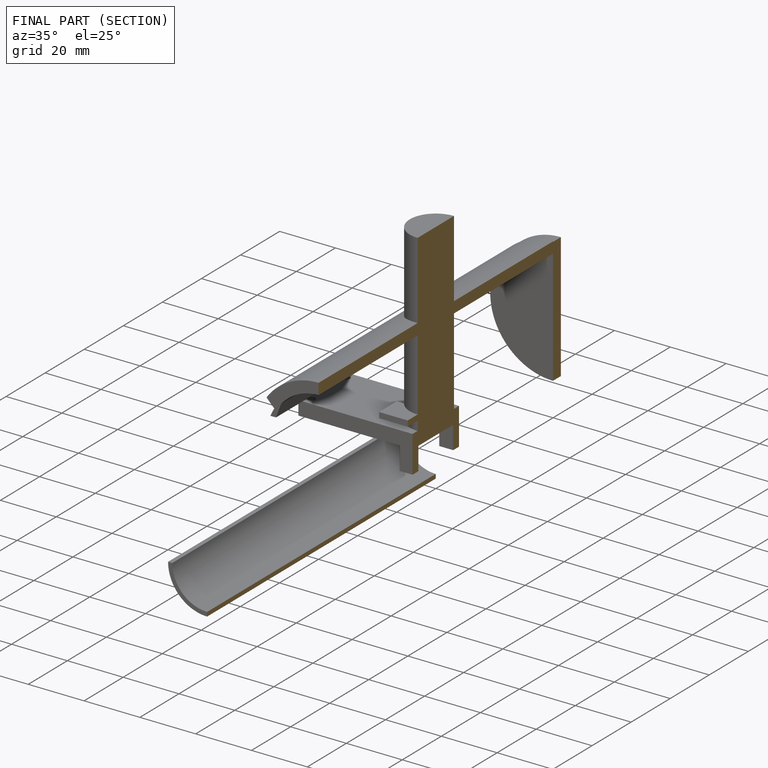
[diagram: finished part — half-section view (interior)]
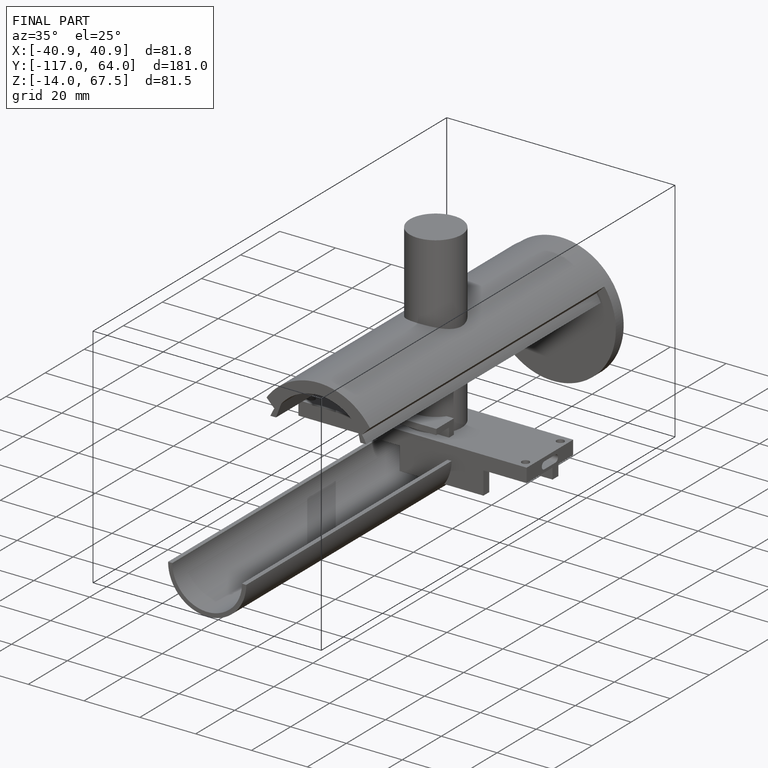
[diagram: finished part — iso view with bounding-box wireframe]
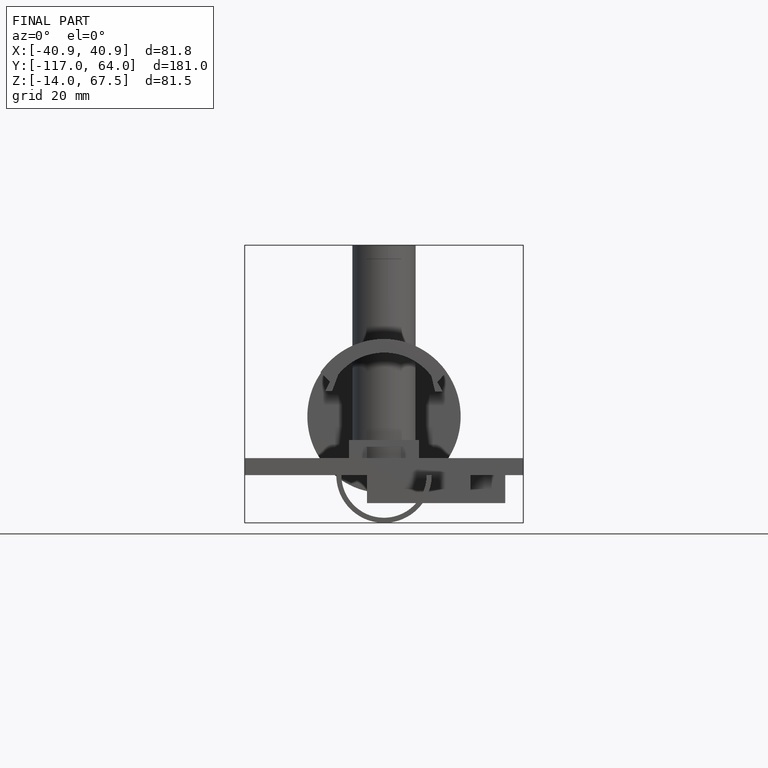
[diagram: finished part — front view with bounding-box wireframe]
